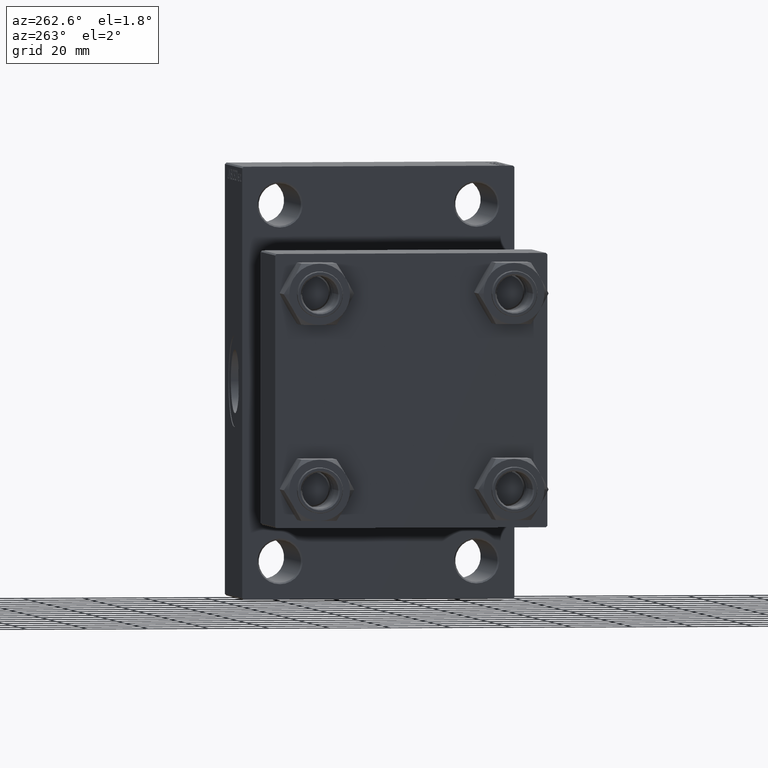
[diagram: clean part render]
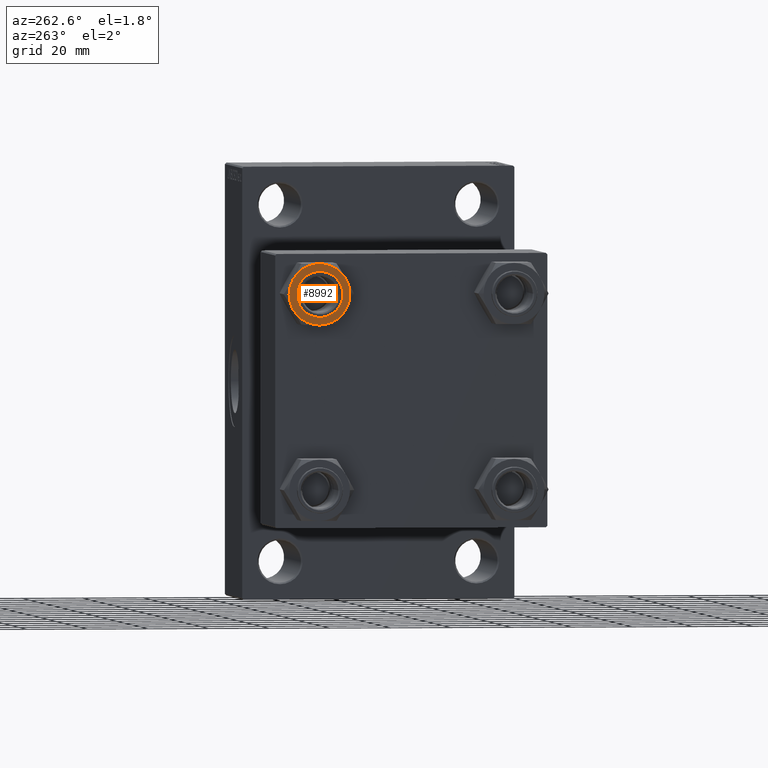
[diagram: same view with one face highlighted and labeled with its STEP entity id]
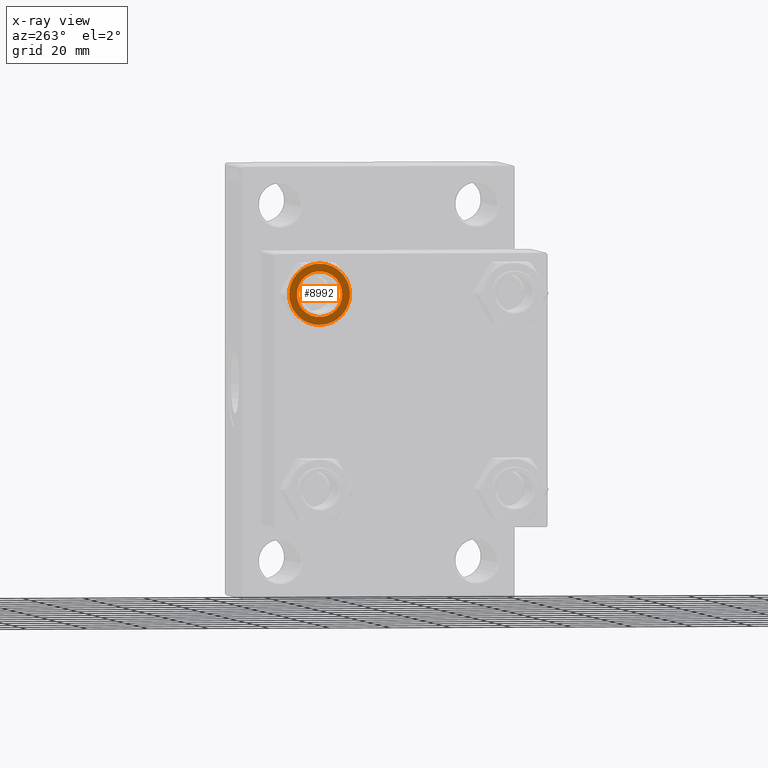
[diagram: x-ray of the same camera — body ghosted, the highlighted face saturated]
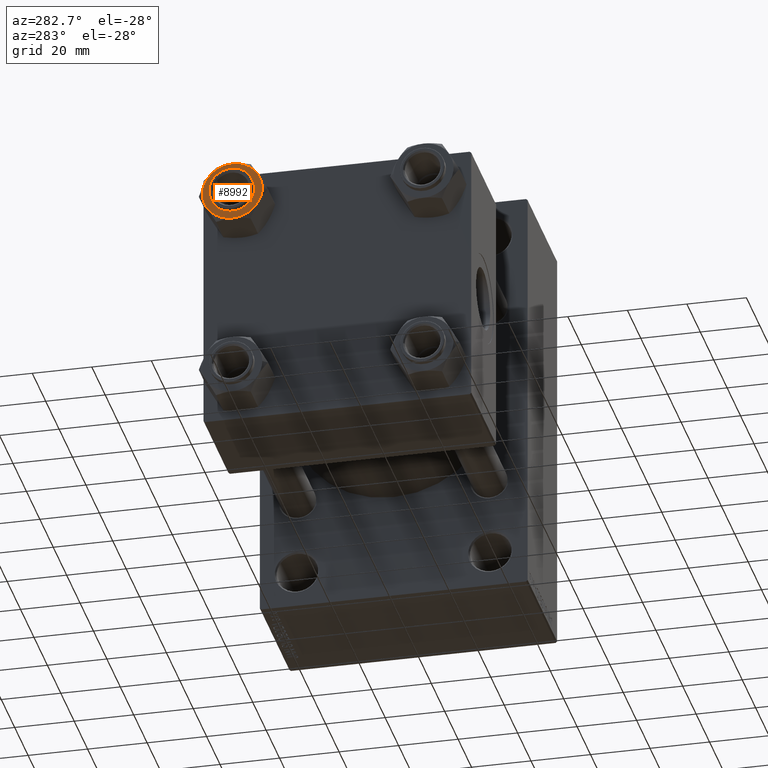
[diagram: same view with one face highlighted and labeled with its STEP entity id]
A machine part, auxiliary view. The second image highlights one B-rep face of the part: STEP entity #8992.
The next image is the same camera in x-ray: the body ghosted, the highlighted face saturated — about 0% of this face is hidden behind the body in this view.
A second angle (auxiliary view) of the same face is appended — the face is thin or edge-on in the first view.
In plain terms, the highlighted planar face has unit normal (1, 0, 0).
Its self-contained STEP definition (entity closure, byte-faithful):
#250 = CARTESIAN_POINT ( 'NONE',  ( 0.000000000000000000, 0.000000000000000000, 0.000000000000000000 ) ) ;
#901 = EDGE_LOOP ( 'NONE', ( #3672, #36241 ) ) ;
#1322 = VERTEX_POINT ( 'NONE', #24751 ) ;
#1392 = EDGE_CURVE ( 'NONE', #22181, #31049, #43741, .T. ) ;
#3402 = AXIS2_PLACEMENT_3D ( 'NONE', #27101, #12289, #26863 ) ;
#3672 = ORIENTED_EDGE ( 'NONE', *, *, #1392, .F. ) ;
#4407 = CARTESIAN_POINT ( 'NONE',  ( 0.000000000000000000, 0.000000000000000000, 0.000000000000000000 ) ) ;
#4760 = ORIENTED_EDGE ( 'NONE', *, *, #6888, .F. ) ;
#4869 = DIRECTION ( 'NONE',  ( -1.000000000000000000, 0.000000000000000000, 0.000000000000000000 ) ) ;
#5811 = ORIENTED_EDGE ( 'NONE', *, *, #14230, .F. ) ;
#5931 = CIRCLE ( 'NONE', #46368, 7.500000000000000000 ) ;
#6340 = CIRCLE ( 'NONE', #38357, 10.06321519197518199 ) ;
#6370 = AXIS2_PLACEMENT_3D ( 'NONE', #36199, #26824, #30412 ) ;
#6697 = DIRECTION ( 'NONE',  ( 0.000000000000000000, 0.000000000000000000, 1.000000000000000000 ) ) ;
#6888 = EDGE_CURVE ( 'NONE', #23332, #1322, #11774, .T. ) ;
#7332 = FACE_BOUND ( 'NONE', #901, .T. ) ;
#7435 = EDGE_CURVE ( 'NONE', #38031, #16715, #37746, .T. ) ;
#7449 = EDGE_CURVE ( 'NONE', #22972, #19980, #17930, .T. ) ;
#7571 = FACE_OUTER_BOUND ( 'NONE', #41711, .T. ) ;
#8451 = DIRECTION ( 'NONE',  ( -1.000000000000000000, 0.000000000000000000, 0.000000000000000000 ) ) ;
#8992 = ADVANCED_FACE ( 'NONE', ( #7332, #7571 ), #18331, .F. ) ;
#9357 = CARTESIAN_POINT ( 'NONE',  ( 0.000000000000000000, 0.000000000000000000, 0.000000000000000000 ) ) ;
#9616 = CARTESIAN_POINT ( 'NONE',  ( 0.000000000000000000, 10.06321519197518022, 0.000000000000000000 ) ) ;
#10280 = DIRECTION ( 'NONE',  ( 1.000000000000000000, 0.000000000000000000, 0.000000000000000000 ) ) ;
#11104 = DIRECTION ( 'NONE',  ( 0.000000000000000000, -0.000000000000000000, -1.000000000000000000 ) ) ;
#11219 = EDGE_CURVE ( 'NONE', #31049, #22181, #5931, .T. ) ;
#11345 = CARTESIAN_POINT ( 'NONE',  ( 0.000000000000000000, 0.000000000000000000, 0.000000000000000000 ) ) ;
#11774 = CIRCLE ( 'NONE', #3402, 10.06321519197518199 ) ;
#12289 = DIRECTION ( 'NONE',  ( 0.000000000000000000, -0.000000000000000000, -1.000000000000000000 ) ) ;
#13127 = CARTESIAN_POINT ( 'NONE',  ( 7.500000000000000000, 9.184850993605147944E-16, 0.000000000000000000 ) ) ;
#13958 = AXIS2_PLACEMENT_3D ( 'NONE', #11345, #11104, #25909 ) ;
#14230 = EDGE_CURVE ( 'NONE', #40891, #19980, #30356, .T. ) ;
#14346 = CARTESIAN_POINT ( 'NONE',  ( 0.000000000000000000, 0.000000000000000000, 0.000000000000000000 ) ) ;
#14459 = AXIS2_PLACEMENT_3D ( 'NONE', #4407, #15393, #8451 ) ;
#14727 = CARTESIAN_POINT ( 'NONE',  ( 0.000000000000000000, 0.000000000000000000, 0.000000000000000000 ) ) ;
#14975 = CARTESIAN_POINT ( 'NONE',  ( 8.715000000000005187, 5.031607595987590109, 0.000000000000000000 ) ) ;
#15393 = DIRECTION ( 'NONE',  ( 0.000000000000000000, -0.000000000000000000, -1.000000000000000000 ) ) ;
#16093 = CARTESIAN_POINT ( 'NONE',  ( 0.000000000000000000, 0.000000000000000000, 0.000000000000000000 ) ) ;
#16715 = VERTEX_POINT ( 'NONE', #22022 ) ;
#16768 = DIRECTION ( 'NONE',  ( 0.000000000000000000, 0.000000000000000000, 1.000000000000000000 ) ) ;
#17160 = AXIS2_PLACEMENT_3D ( 'NONE', #250, #46800, #47047 ) ;
#17930 = CIRCLE ( 'NONE', #35462, 10.06321519197518199 ) ;
#18031 = ORIENTED_EDGE ( 'NONE', *, *, #7435, .F. ) ;
#18331 = PLANE ( 'NONE',  #36917 ) ;
#18728 = EDGE_CURVE ( 'NONE', #22972, #23332, #35059, .T. ) ;
#19980 = VERTEX_POINT ( 'NONE', #9616 ) ;
#20309 = ORIENTED_EDGE ( 'NONE', *, *, #7449, .T. ) ;
#21180 = AXIS2_PLACEMENT_3D ( 'NONE', #14727, #40271, #41212 ) ;
#22022 = CARTESIAN_POINT ( 'NONE',  ( -8.715000000000006963, -5.031607595987586556, 0.000000000000000000 ) ) ;
#22181 = VERTEX_POINT ( 'NONE', #44163 ) ;
#22972 = VERTEX_POINT ( 'NONE', #14975 ) ;
#23332 = VERTEX_POINT ( 'NONE', #30838 ) ;
#23931 = DIRECTION ( 'NONE',  ( 1.000000000000000000, 0.000000000000000000, 0.000000000000000000 ) ) ;
#24751 = CARTESIAN_POINT ( 'NONE',  ( 8.715000000000003411, -5.031607595987592774, 0.000000000000000000 ) ) ;
#25657 = ORIENTED_EDGE ( 'NONE', *, *, #38367, .F. ) ;
#25909 = DIRECTION ( 'NONE',  ( -1.000000000000000000, 0.000000000000000000, 0.000000000000000000 ) ) ;
#26824 = DIRECTION ( 'NONE',  ( 0.000000000000000000, 0.000000000000000000, 1.000000000000000000 ) ) ;
#26863 = DIRECTION ( 'NONE',  ( -1.000000000000000000, 0.000000000000000000, 0.000000000000000000 ) ) ;
#27101 = CARTESIAN_POINT ( 'NONE',  ( 0.000000000000000000, 0.000000000000000000, 0.000000000000000000 ) ) ;
#27718 = ORIENTED_EDGE ( 'NONE', *, *, #38482, .F. ) ;
#29399 = CARTESIAN_POINT ( 'NONE',  ( -8.715000000000003411, 5.031607595987592774, 0.000000000000000000 ) ) ;
#30356 = CIRCLE ( 'NONE', #21180, 10.06321519197518199 ) ;
#30412 = DIRECTION ( 'NONE',  ( 1.000000000000000000, 0.000000000000000000, 0.000000000000000000 ) ) ;
#30838 = CARTESIAN_POINT ( 'NONE',  ( 10.06321519197518199, 0.000000000000000000, 0.000000000000000000 ) ) ;
#31049 = VERTEX_POINT ( 'NONE', #13127 ) ;
#32728 = ORIENTED_EDGE ( 'NONE', *, *, #18728, .F. ) ;
#33810 = CIRCLE ( 'NONE', #13958, 10.06321519197518199 ) ;
#35059 = CIRCLE ( 'NONE', #14459, 10.06321519197518199 ) ;
#35462 = AXIS2_PLACEMENT_3D ( 'NONE', #14346, #6697, #10280 ) ;
#36199 = CARTESIAN_POINT ( 'NONE',  ( 0.000000000000000000, 0.000000000000000000, 0.000000000000000000 ) ) ;
#36241 = ORIENTED_EDGE ( 'NONE', *, *, #11219, .F. ) ;
#36917 = AXIS2_PLACEMENT_3D ( 'NONE', #41004, #40289, #43875 ) ;
#37746 = CIRCLE ( 'NONE', #17160, 10.06321519197518199 ) ;
#38031 = VERTEX_POINT ( 'NONE', #43512 ) ;
#38357 = AXIS2_PLACEMENT_3D ( 'NONE', #16093, #40706, #4869 ) ;
#38367 = EDGE_CURVE ( 'NONE', #16715, #40891, #33810, .T. ) ;
#38482 = EDGE_CURVE ( 'NONE', #1322, #38031, #6340, .T. ) ;
#40271 = DIRECTION ( 'NONE',  ( 0.000000000000000000, -0.000000000000000000, -1.000000000000000000 ) ) ;
#40289 = DIRECTION ( 'NONE',  ( 0.000000000000000000, 0.000000000000000000, -1.000000000000000000 ) ) ;
#40706 = DIRECTION ( 'NONE',  ( 0.000000000000000000, -0.000000000000000000, -1.000000000000000000 ) ) ;
#40891 = VERTEX_POINT ( 'NONE', #29399 ) ;
#41004 = CARTESIAN_POINT ( 'NONE',  ( 0.000000000000000000, 0.000000000000000000, 0.000000000000000000 ) ) ;
#41212 = DIRECTION ( 'NONE',  ( -1.000000000000000000, 0.000000000000000000, 0.000000000000000000 ) ) ;
#41711 = EDGE_LOOP ( 'NONE', ( #5811, #25657, #18031, #27718, #4760, #32728, #20309 ) ) ;
#43512 = CARTESIAN_POINT ( 'NONE',  ( 1.502314598737159623E-15, -10.06321519197518199, 0.000000000000000000 ) ) ;
#43741 = CIRCLE ( 'NONE', #6370, 7.500000000000000000 ) ;
#43875 = DIRECTION ( 'NONE',  ( -1.000000000000000000, 0.000000000000000000, -0.000000000000000000 ) ) ;
#44163 = CARTESIAN_POINT ( 'NONE',  ( -7.500000000000000000, 0.000000000000000000, 0.000000000000000000 ) ) ;
#46368 = AXIS2_PLACEMENT_3D ( 'NONE', #9357, #16768, #23931 ) ;
#46800 = DIRECTION ( 'NONE',  ( 0.000000000000000000, -0.000000000000000000, -1.000000000000000000 ) ) ;
#47047 = DIRECTION ( 'NONE',  ( -1.000000000000000000, 0.000000000000000000, 0.000000000000000000 ) ) ;